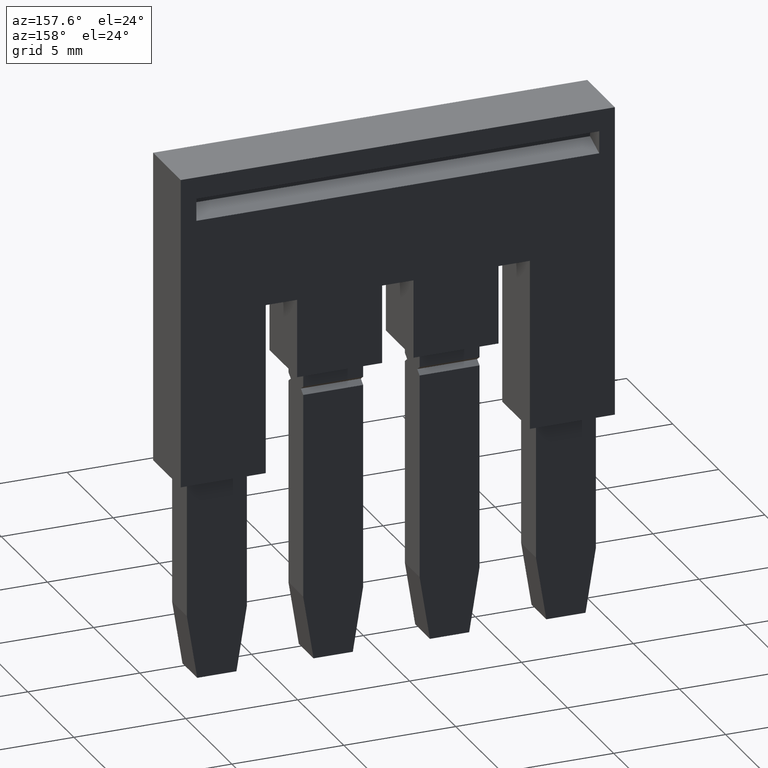
[diagram: clean part render]
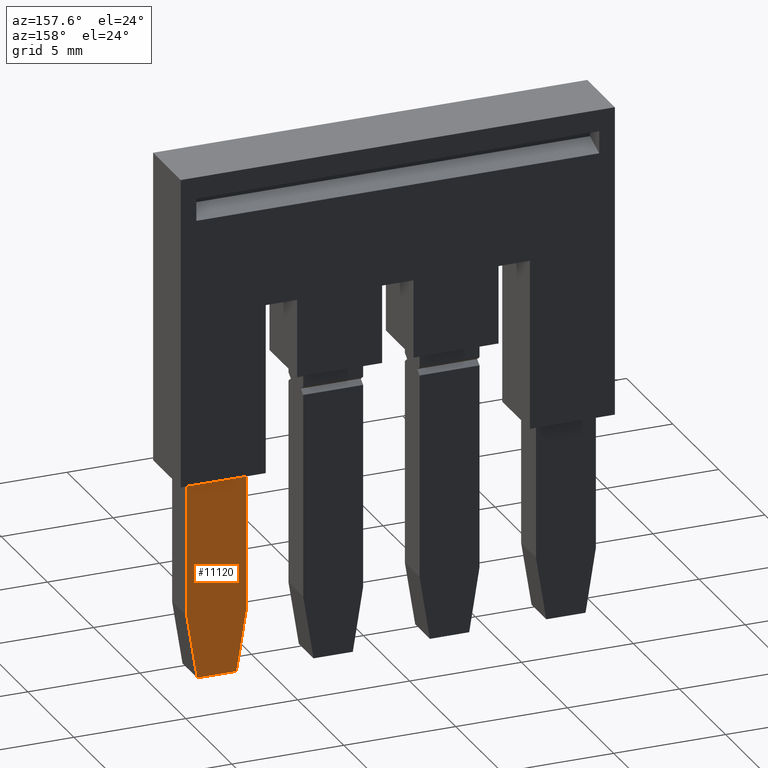
[diagram: same view with one face highlighted and labeled with its STEP entity id]
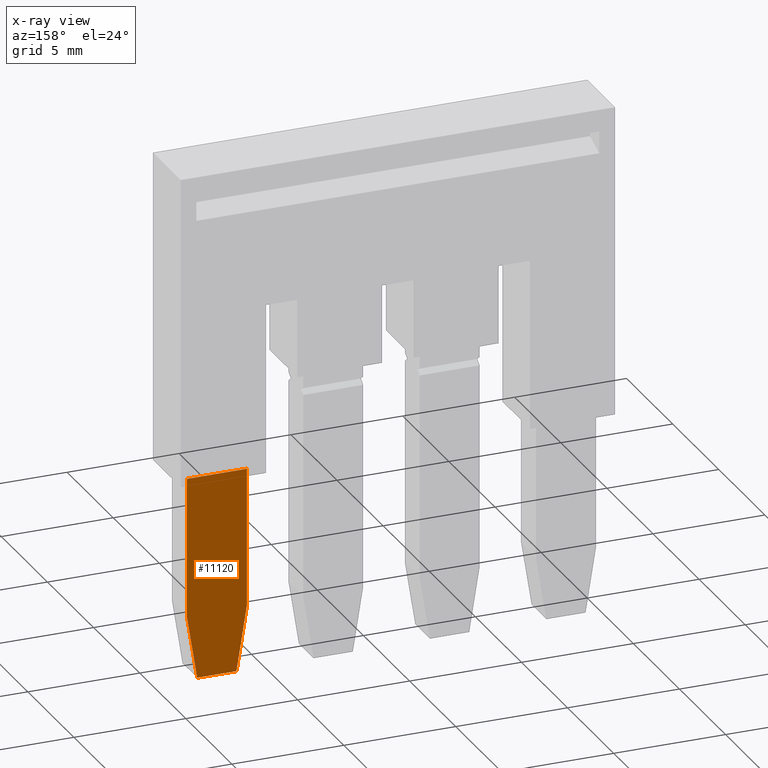
[diagram: x-ray of the same camera — body ghosted, the highlighted face saturated]
A machine part, auxiliary view. The second image highlights one B-rep face of the part: STEP entity #11120.
The next image is the same camera in x-ray: the body ghosted, the highlighted face saturated — about 0% of this face is hidden behind the body in this view.
In plain terms, the highlighted planar face has unit normal (0, 1, 0).
Its self-contained STEP definition (entity closure, byte-faithful):
#10300=CARTESIAN_POINT('',(3.30716722169511,-23.7750000000004,
39.5199999990359));
#10310=VERTEX_POINT('',#10300);
#10460=CARTESIAN_POINT('',(3.30716722169511,-23.7750000000004,
42.1999999990348));
#10470=VERTEX_POINT('',#10460);
#10500=CARTESIAN_POINT('',(3.3071672216951,-23.7750000000004,
97.3199999999975));
#10510=DIRECTION('',(1.22464679914735E-16,0.,-1.));
#10520=VECTOR('',#10510,1.);
#10530=LINE('',#10500,#10520);
#10540=EDGE_CURVE('',#10470,#10310,#10530,.T.);
#10660=CARTESIAN_POINT('',(3.30716722169511,-26.8778710312366,
40.8599999990354));
#10670=DIRECTION('',(-1.,0.,-1.22464679914735E-16));
#10680=DIRECTION('',(-1.22464679914735E-16,0.,1.));
#10690=AXIS2_PLACEMENT_3D('',#10660,#10670,#10680);
#10700=PLANE('',#10690);
#10710=ORIENTED_EDGE('',*,*,#10540,.T.);
#10720=CARTESIAN_POINT('',(3.30716722169511,-13.005123999997,
42.1999999990348));
#10730=DIRECTION('',(1.11679254060156E-32,1.,-9.11930314421364E-17));
#10740=VECTOR('',#10730,1.);
#10750=LINE('',#10720,#10740);
#10760=CARTESIAN_POINT('',(3.30716722169511,-29.9807420624732,
42.1999999990348));
#10770=VERTEX_POINT('',#10760);
#10780=EDGE_CURVE('',#10770,#10470,#10750,.T.);
#10790=ORIENTED_EDGE('',*,*,#10780,.T.);
#10800=CARTESIAN_POINT('',(3.30716722169511,-13.005123999997,
44.9404020769722));
#10810=DIRECTION('',(1.95170029616573E-17,-0.987219178105449,
-0.159368423411924));
#10820=VECTOR('',#10810,1.);
#10830=LINE('',#10800,#10820);
#10840=CARTESIAN_POINT('',(3.30716722169511,-32.8500000022934,
41.7368109480393));
#10850=VERTEX_POINT('',#10840);
#10860=EDGE_CURVE('',#10770,#10850,#10830,.T.);
#10870=ORIENTED_EDGE('',*,*,#10860,.F.);
#10880=CARTESIAN_POINT('',(3.30716722169511,-32.8500000022922,
50.2450159999975));
#10890=DIRECTION('',(-1.22464679914735E-16,1.44960956186225E-13,1.));
#10900=VECTOR('',#10890,1.);
#10910=LINE('',#10880,#10900);
#10920=CARTESIAN_POINT('',(3.30716722169511,-32.8500000022937,
39.9831890500317));
#10930=VERTEX_POINT('',#10920);
#10940=EDGE_CURVE('',#10930,#10850,#10910,.T.);
#10950=ORIENTED_EDGE('',*,*,#10940,.T.);
#10960=CARTESIAN_POINT('',(3.30716722169511,-13.005123999997,
36.7795979210987));
#10970=DIRECTION('',(1.95170029616573E-17,0.987219178105449,
-0.159368423411924));
#10980=VECTOR('',#10970,1.);
#10990=LINE('',#10960,#10980);
#11000=CARTESIAN_POINT('',(3.30716722169511,-29.9807420624721,
39.5199999990359));
#11010=VERTEX_POINT('',#11000);
#11020=EDGE_CURVE('',#10930,#11010,#10990,.T.);
#11030=ORIENTED_EDGE('',*,*,#11020,.F.);
#11040=CARTESIAN_POINT('',(3.30716722169511,-13.005123999997,
39.5199999990359));
#11050=DIRECTION('',(2.91340061792681E-32,1.,-2.3789721411555E-16));
#11060=VECTOR('',#11050,1.);
#11070=LINE('',#11040,#11060);
#11080=EDGE_CURVE('',#11010,#10310,#11070,.T.);
#11090=ORIENTED_EDGE('',*,*,#11080,.F.);
#11100=EDGE_LOOP('',(#11090,#11030,#10950,#10870,#10790,#10710));
#11110=FACE_OUTER_BOUND('',#11100,.T.);
#11120=ADVANCED_FACE('',(#11110),#10700,.T.);